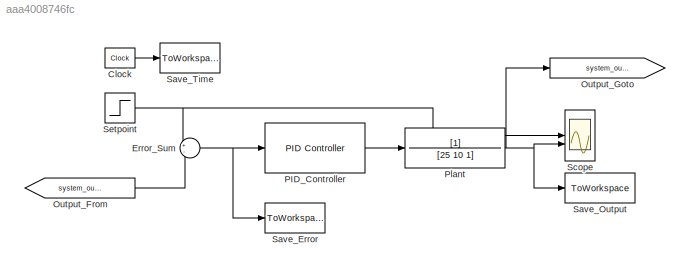
MODEL slx_aaa4008746fc
KIND model
CONFIG AbsTol = auto
CONFIG EnableMultiTasking = off
CONFIG FixedStep = auto
CONFIG MaxStep = auto
CONFIG MinStep = auto
CONFIG RelTol = 1e-3
CONFIG SampleTimeConstraint = Unconstrained
CONFIG SolverName = ode45
CONFIG StartTime = 0.0
CONFIG StopTime = 100
BLOCK [Clock] Clock
BLOCK [Sum] Error_Sum
  Inputs = +-
BLOCK [From] Output_From
  GotoTag = system_output
BLOCK [Goto] Output_Goto
  GotoTag = system_output
BLOCK [Reference] PID_Controller  REF=slpidlib/PID Controller
  SourceBlock = slpidlib/PID Controller
  SourceType = PID 1dof
BLOCK [TransferFcn] Plant
  Denominator = [25 10 1]
BLOCK [ToWorkspace] Save_Error
  FixptAsFi = on
  MaxDataPoints = inf
  SampleTime = -1
  VariableName = error_data
BLOCK [ToWorkspace] Save_Output
  FixptAsFi = on
  MaxDataPoints = inf
  SampleTime = -1
  VariableName = output_data
BLOCK [ToWorkspace] Save_Time
  FixptAsFi = on
  MaxDataPoints = inf
  SampleTime = -1
  VariableName = time_data
BLOCK [Scope] Scope
  Floating = off
  GraphicalSettings = {"GraphicalSettings":{"LegacySettings":true,"Style":{"Style":{"PlotType":"Auto"}}}}
  LayoutDimensionsString = [2 1]
  MultipleDisplayCache = [{"MaxYLimMag":10,"MaxYLimReal":10,"MinYLimMag":0,"MinYLimReal":-10,"PlotAsMagnitudePhase":false,"ShowGrid":true,"ShowLegend":false,"Title":"%<SignalLabel>","YLabel":""},{"MaxYLimMag":10,"MaxYLimReal":10,"MinYLimMag":0,"MinYLimReal":-10,"PlotAsMagnitudePhase":false,"ShowGrid":true,"ShowLegend":false,"Title":"%<SignalLabel>","YLabel":""}]
  NumInputPorts = 2
  WasSavedAsWebScope = on
BLOCK [Step] Setpoint
  SampleTime = 0
  Time = 0
LINE Clock:1 -> Save_Time:1
NET Error_Sum:1 -> PID_Controller:1, Save_Error:1
LINE Output_From:1 -> Error_Sum:2
LINE PID_Controller:1 -> Plant:1
NET Plant:1 -> Output_Goto:1, Save_Output:1, Scope:2
NET Setpoint:1 -> Error_Sum:1, Scope:1
note: NET lines group one-source signal fan-out (src -> all destinations, sorted); 1:1 wires keep LINE
